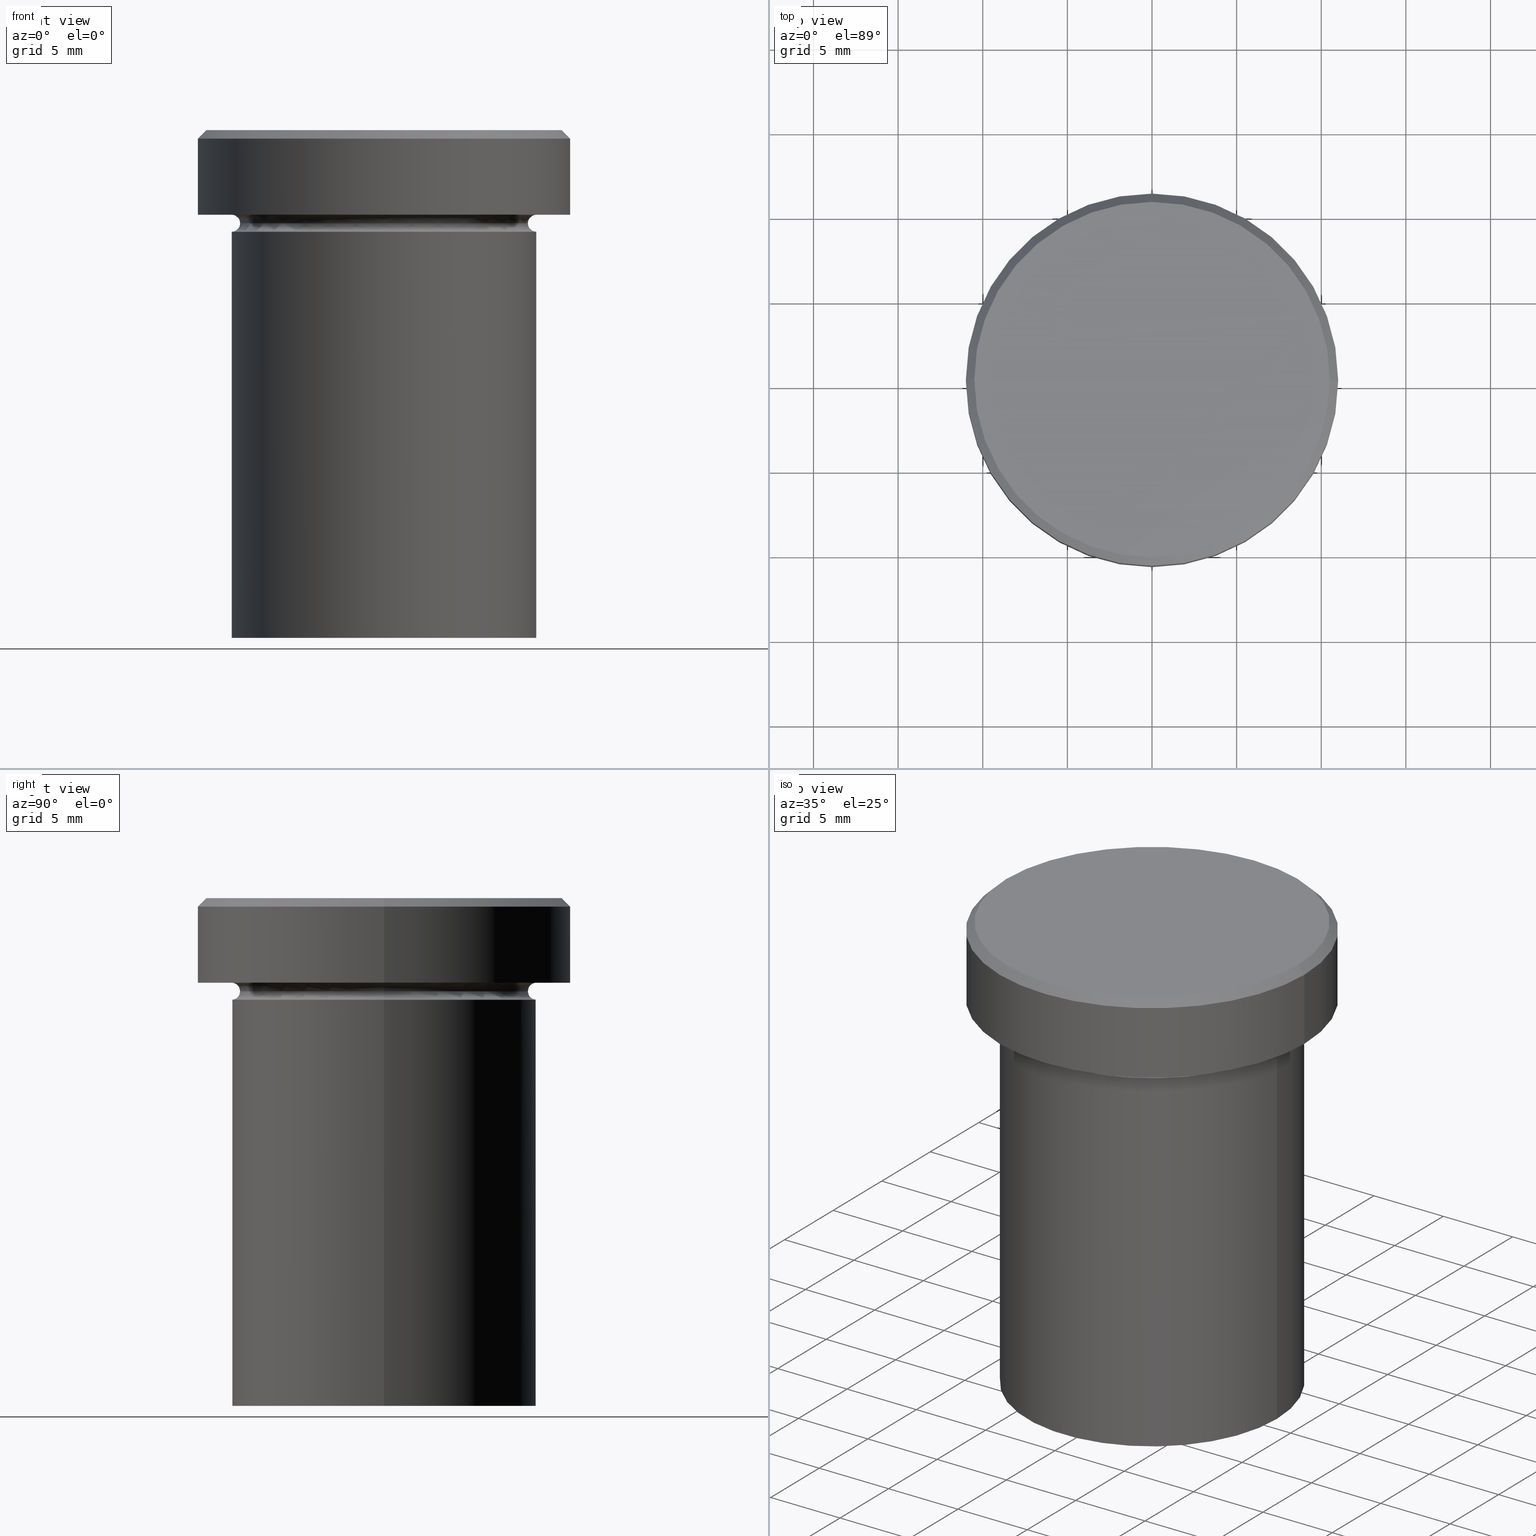
[diagram: canonical four-view strip — front | top / right | iso, engineering-drawing reading convention]
A machine part, canonical four-view strip (front | top / right | iso — engineering-drawing reading convention). The complete STEP part file that produces these views, byte-faithful:
ISO-10303-21;
HEADER;
FILE_DESCRIPTION (( 'STEP AP203' ),
    '1' );
FILE_NAME ('9d83.STEP',
    '2024-01-02T21:50:47',
    ( '' ),
    ( '' ),
    'SwSTEP 2.0',
    'SolidWorks 2019',
    '' );
FILE_SCHEMA (( 'CONFIG_CONTROL_DESIGN' ));
ENDSEC;

DATA;
#1 = AXIS2_PLACEMENT_3D ( 'NONE', #74, #387, #322 ) ;
#2 = LOCAL_TIME ( 22, 50, 47.00000000000000000, #148 ) ;
#3 = CARTESIAN_POINT ( 'NONE',  ( 10.49999999999999467, 1.285879139104720239E-15, 0.000000000000000000 ) ) ;
#4 = EDGE_CURVE ( 'NONE', #88, #63, #204, .T. ) ;
#5 = FACE_OUTER_BOUND ( 'NONE', #58, .T. ) ;
#6 = MECHANICAL_CONTEXT ( 'NONE', #288, 'mechanical' ) ;
#7 = CARTESIAN_POINT ( 'NONE',  ( 0.000000000000000000, 0.000000000000000000, -5.500000000000000000 ) ) ;
#8 = FACE_OUTER_BOUND ( 'NONE', #177, .T. ) ;
#9 = CIRCLE ( 'NONE', #242, 9.000000000000000000 ) ;
#10 = CC_DESIGN_APPROVAL ( #283, ( #312 ) ) ;
#11 = ADVANCED_BREP_SHAPE_REPRESENTATION ( '9d83', ( #81, #179 ), #135 ) ;
#12 = ADVANCED_FACE ( 'NONE', ( #185 ), #362, .T. ) ;
#13 = ORIENTED_EDGE ( 'NONE', *, *, #42, .F. ) ;
#14 = ORIENTED_EDGE ( 'NONE', *, *, #402, .T. ) ;
#15 = CARTESIAN_POINT ( 'NONE',  ( 9.000000000000000000, 1.102182119232617714E-15, -5.500000000000000000 ) ) ;
#16 = CONICAL_SURFACE ( 'NONE', #108, 10.49999999999999467, 0.7853981633974412846 ) ;
#17 = CALENDAR_DATE ( 2024, 2, 1 ) ;
#18 = DIRECTION ( 'NONE',  ( -0.000000000000000000, -0.000000000000000000, 1.000000000000000000 ) ) ;
#19 = EDGE_CURVE ( 'NONE', #405, #220, #21, .T. ) ;
#20 = DIRECTION ( 'NONE',  ( 1.000000000000000000, 0.000000000000000000, 0.000000000000000000 ) ) ;
#21 = CIRCLE ( 'NONE', #216, 8.499999999999998224 ) ;
#22 = DIRECTION ( 'NONE',  ( 1.224646799147353207E-16, 1.000000000000000000, 0.000000000000000000 ) ) ;
#23 = PERSON ( 'NEUR�EN�', 'NEUR�EN�', 'NEUR�EN�', ('NEUR�EN�'), ('NEUR�EN�'), ('NEUR�EN�') ) ;
#24 = ORIENTED_EDGE ( 'NONE', *, *, #82, .T. ) ;
#25 = FACE_OUTER_BOUND ( 'NONE', #367, .T. ) ;
#26 = CARTESIAN_POINT ( 'NONE',  ( 0.000000000000000000, 0.000000000000000000, -30.00000000000000000 ) ) ;
#27 = ADVANCED_FACE ( 'NONE', ( #354 ), #195, .T. ) ;
#28 = EDGE_LOOP ( 'NONE', ( #275, #309, #133, #155 ) ) ;
#29 = ORIENTED_EDGE ( 'NONE', *, *, #94, .F. ) ;
#30 = ORIENTED_EDGE ( 'NONE', *, *, #110, .T. ) ;
#31 = AXIS2_PLACEMENT_3D ( 'NONE', #359, #77, #328 ) ;
#32 = ORIENTED_EDGE ( 'NONE', *, *, #297, .F. ) ;
#33 = VECTOR ( 'NONE', #239, 1000.000000000000000 ) ;
#34 = EDGE_CURVE ( 'NONE', #310, #250, #213, .T. ) ;
#35 = DATE_AND_TIME ( #232, #389 ) ;
#36 = DIRECTION ( 'NONE',  ( -0.000000000000000000, -0.000000000000000000, 1.000000000000000000 ) ) ;
#37 = CYLINDRICAL_SURFACE ( 'NONE', #89, 11.00000000000000178 ) ;
#38 = DIRECTION ( 'NONE',  ( -0.000000000000000000, -0.000000000000000000, 1.000000000000000000 ) ) ;
#39 = ORIENTED_EDGE ( 'NONE', *, *, #291, .T. ) ;
#40 = ORIENTED_EDGE ( 'NONE', *, *, #114, .T. ) ;
#41 = AXIS2_PLACEMENT_3D ( 'NONE', #287, #258, #262 ) ;
#42 = EDGE_CURVE ( 'NONE', #405, #390, #106, .T. ) ;
#43 = CARTESIAN_POINT ( 'NONE',  ( 0.000000000000000000, 0.000000000000000000, 0.000000000000000000 ) ) ;
#44 = PLANE ( 'NONE',  #388 ) ;
#45 = DIRECTION ( 'NONE',  ( -0.000000000000000000, -0.000000000000000000, 1.000000000000000000 ) ) ;
#46 = CC_DESIGN_DATE_AND_TIME_ASSIGNMENT ( #117, #360, ( #122 ) ) ;
#47 = CARTESIAN_POINT ( 'NONE',  ( 9.000000000000000000, 0.000000000000000000, -6.000000000000000000 ) ) ;
#48 = APPROVAL ( #329, 'NEUR�EN�' ) ;
#49 = CIRCLE ( 'NONE', #107, 9.000000000000000000 ) ;
#50 = VECTOR ( 'NONE', #330, 999.9999999999998863 ) ;
#51 = CARTESIAN_POINT ( 'NONE',  ( 0.000000000000000000, 0.000000000000000000, 0.000000000000000000 ) ) ;
#52 = APPROVAL_ROLE ( '' ) ;
#53 = PERSON_AND_ORGANIZATION ( #23, #379 ) ;
#54 = CARTESIAN_POINT ( 'NONE',  ( 0.000000000000000000, 0.000000000000000000, -5.500000000000000000 ) ) ;
#55 = ADVANCED_FACE ( 'NONE', ( #75 ), #124, .F. ) ;
#56 = PRODUCT_DEFINITION_FORMATION_WITH_SPECIFIED_SOURCE ( 'LIBOVOLN�', '', #168, .NOT_KNOWN. ) ;
#57 = ORIENTED_EDGE ( 'NONE', *, *, #376, .F. ) ;
#58 = EDGE_LOOP ( 'NONE', ( #126, #215, #200, #338 ) ) ;
#59 = EDGE_LOOP ( 'NONE', ( #40, #98, #120, #57 ) ) ;
#60 = CIRCLE ( 'NONE', #289, 9.000000000000000000 ) ;
#61 = AXIS2_PLACEMENT_3D ( 'NONE', #205, #299, #320 ) ;
#62 = ORIENTED_EDGE ( 'NONE', *, *, #110, .F. ) ;
#63 = VERTEX_POINT ( 'NONE', #104 ) ;
#64 = LINE ( 'NONE', #3, #78 ) ;
#65 = CALENDAR_DATE ( 2024, 2, 1 ) ;
#66 = CARTESIAN_POINT ( 'NONE',  ( 0.000000000000000000, 0.000000000000000000, 0.000000000000000000 ) ) ;
#67 = DIRECTION ( 'NONE',  ( 0.000000000000000000, 0.000000000000000000, -1.000000000000000000 ) ) ;
#68 = APPROVAL_ROLE ( '' ) ;
#69 = EDGE_CURVE ( 'NONE', #159, #156, #226, .T. ) ;
#70 = APPROVAL_ROLE ( '' ) ;
#71 = CIRCLE ( 'NONE', #172, 11.00000000000000000 ) ;
#72 = DIRECTION ( 'NONE',  ( -1.000000000000000000, 0.000000000000000000, -0.000000000000000000 ) ) ;
#73 = SECURITY_CLASSIFICATION_LEVEL ( 'unclassified' ) ;
#74 = CARTESIAN_POINT ( 'NONE',  ( -9.000000000000000000, 0.000000000000000000, -5.500000000000000000 ) ) ;
#75 = FACE_OUTER_BOUND ( 'NONE', #188, .T. ) ;
#76 = VECTOR ( 'NONE', #102, 1000.000000000000000 ) ;
#77 = DIRECTION ( 'NONE',  ( 0.000000000000000000, 0.000000000000000000, -1.000000000000000000 ) ) ;
#78 = VECTOR ( 'NONE', #103, 999.9999999999998863 ) ;
#79 = APPROVAL_PERSON_ORGANIZATION ( #80, #48, #70 ) ;
#80 = PERSON_AND_ORGANIZATION ( #23, #379 ) ;
#81 = MANIFOLD_SOLID_BREP ( 'Zkosen�1', #393 ) ;
#82 = EDGE_CURVE ( 'NONE', #156, #159, #341, .T. ) ;
#83 = DIRECTION ( 'NONE',  ( -1.000000000000000000, 0.000000000000000000, 0.000000000000000000 ) ) ;
#84 = DIRECTION ( 'NONE',  ( 1.000000000000000000, 0.000000000000000000, 0.000000000000000000 ) ) ;
#85 = DIRECTION ( 'NONE',  ( -1.000000000000000000, 0.000000000000000000, 0.000000000000000000 ) ) ;
#86 = PERSON_AND_ORGANIZATION ( #23, #379 ) ;
#87 = CARTESIAN_POINT ( 'NONE',  ( 0.000000000000000000, 0.000000000000000000, -5.000000000000000000 ) ) ;
#88 = VERTEX_POINT ( 'NONE', #383 ) ;
#89 = AXIS2_PLACEMENT_3D ( 'NONE', #66, #227, #352 ) ;
#90 = DIRECTION ( 'NONE',  ( 1.000000000000000000, 0.000000000000000000, 0.000000000000000000 ) ) ;
#91 = EDGE_LOOP ( 'NONE', ( #404, #163 ) ) ;
#92 = ORIENTED_EDGE ( 'NONE', *, *, #251, .F. ) ;
#93 = ORIENTED_EDGE ( 'NONE', *, *, #192, .F. ) ;
#94 = EDGE_CURVE ( 'NONE', #88, #260, #71, .T. ) ;
#95 = ORIENTED_EDGE ( 'NONE', *, *, #272, .T. ) ;
#96 = DIRECTION ( 'NONE',  ( 1.000000000000000000, 0.000000000000000000, 0.000000000000000000 ) ) ;
#97 = APPLICATION_PROTOCOL_DEFINITION ( 'international standard', 'config_control_design', 1994, #288 ) ;
#98 = ORIENTED_EDGE ( 'NONE', *, *, #192, .T. ) ;
#99 = AXIS2_PLACEMENT_3D ( 'NONE', #147, #394, #183 ) ;
#100 = ORIENTED_EDGE ( 'NONE', *, *, #69, .F. ) ;
#101 = CC_DESIGN_PERSON_AND_ORGANIZATION_ASSIGNMENT ( #396, #303, ( #312 ) ) ;
#102 = DIRECTION ( 'NONE',  ( -0.000000000000000000, -0.000000000000000000, 1.000000000000000000 ) ) ;
#103 = DIRECTION ( 'NONE',  ( 0.7071067811865425767, 8.659560562354873694E-17, -0.7071067811865525687 ) ) ;
#104 = CARTESIAN_POINT ( 'NONE',  ( -11.00000000000000178, 1.347111479062088602E-15, -0.5000000000000125455 ) ) ;
#105 = APPROVAL_STATUS ( 'not_yet_approved' ) ;
#106 = CIRCLE ( 'NONE', #233, 0.5000000000000004441 ) ;
#107 = AXIS2_PLACEMENT_3D ( 'NONE', #87, #118, #154 ) ;
#108 = AXIS2_PLACEMENT_3D ( 'NONE', #149, #121, #85 ) ;
#109 = PRODUCT_DEFINITION_SHAPE ( 'NONE', 'NONE',  #122 ) ;
#110 = EDGE_CURVE ( 'NONE', #220, #319, #218, .T. ) ;
#111 = FACE_OUTER_BOUND ( 'NONE', #290, .T. ) ;
#112 = COORDINATED_UNIVERSAL_TIME_OFFSET ( 1, 0, .AHEAD. ) ;
#113 = VERTEX_POINT ( 'NONE', #371 ) ;
#114 = EDGE_CURVE ( 'NONE', #250, #310, #284, .T. ) ;
#115 = DIRECTION ( 'NONE',  ( -0.000000000000000000, -0.000000000000000000, 1.000000000000000000 ) ) ;
#116 = FACE_OUTER_BOUND ( 'NONE', #91, .T. ) ;
#117 = DATE_AND_TIME ( #268, #2 ) ;
#118 = DIRECTION ( 'NONE',  ( -0.000000000000000000, -0.000000000000000000, 1.000000000000000000 ) ) ;
#119 = CC_DESIGN_APPROVAL ( #48, ( #56 ) ) ;
#120 = ORIENTED_EDGE ( 'NONE', *, *, #291, .F. ) ;
#121 = DIRECTION ( 'NONE',  ( 0.000000000000000000, 0.000000000000000000, -1.000000000000000000 ) ) ;
#122 = PRODUCT_DEFINITION ( 'NEZN�M�', '', #56, #344 ) ;
#123 = CARTESIAN_POINT ( 'NONE',  ( -9.000000000000000000, 0.000000000000000000, -4.999999999999999112 ) ) ;
#124 = TOROIDAL_SURFACE ( 'NONE', #397, 9.000000000000000000, 0.5000000000000000000 ) ;
#125 = CIRCLE ( 'NONE', #61, 9.000000000000000000 ) ;
#126 = ORIENTED_EDGE ( 'NONE', *, *, #4, .F. ) ;
#127 = CC_DESIGN_PERSON_AND_ORGANIZATION_ASSIGNMENT ( #199, #263, ( #168 ) ) ;
#128 = ORIENTED_EDGE ( 'NONE', *, *, #140, .F. ) ;
#129 = DIRECTION ( 'NONE',  ( 0.000000000000000000, 0.000000000000000000, -1.000000000000000000 ) ) ;
#130 = ORIENTED_EDGE ( 'NONE', *, *, #34, .T. ) ;
#131 = ORIENTED_EDGE ( 'NONE', *, *, #409, .F. ) ;
#132 = EDGE_CURVE ( 'NONE', #156, #294, #64, .T. ) ;
#133 = ORIENTED_EDGE ( 'NONE', *, *, #240, .T. ) ;
#134 = AXIS2_PLACEMENT_3D ( 'NONE', #276, #340, #90 ) ;
#135 =( GEOMETRIC_REPRESENTATION_CONTEXT ( 3 ) GLOBAL_UNCERTAINTY_ASSIGNED_CONTEXT ( ( #384 ) ) GLOBAL_UNIT_ASSIGNED_CONTEXT ( ( #391, #231, #234 ) ) REPRESENTATION_CONTEXT ( 'NONE', 'WORKASPACE' ) );
#136 = CARTESIAN_POINT ( 'NONE',  ( 0.000000000000000000, 0.000000000000000000, 0.000000000000000000 ) ) ;
#137 = ADVANCED_FACE ( 'NONE', ( #257 ), #184, .F. ) ;
#138 = CARTESIAN_POINT ( 'NONE',  ( 9.000000000000000000, 0.000000000000000000, -5.500000000000000000 ) ) ;
#139 = PERSON_AND_ORGANIZATION ( #23, #379 ) ;
#140 = EDGE_CURVE ( 'NONE', #260, #88, #178, .T. ) ;
#141 = DIRECTION ( 'NONE',  ( -1.000000000000000000, -1.224646799147353454E-16, 0.000000000000000000 ) ) ;
#142 = PERSON_AND_ORGANIZATION ( #23, #379 ) ;
#143 = DIRECTION ( 'NONE',  ( 0.000000000000000000, -1.000000000000000000, 0.000000000000000000 ) ) ;
#144 = FACE_OUTER_BOUND ( 'NONE', #314, .T. ) ;
#145 = CARTESIAN_POINT ( 'NONE',  ( 0.000000000000000000, 0.000000000000000000, -5.500000000000000000 ) ) ;
#146 = APPROVAL_DATE_TIME ( #325, #346 ) ;
#147 = CARTESIAN_POINT ( 'NONE',  ( 0.000000000000000000, 0.000000000000000000, -0.5000000000000125455 ) ) ;
#148 = COORDINATED_UNIVERSAL_TIME_OFFSET ( 1, 0, .AHEAD. ) ;
#149 = CARTESIAN_POINT ( 'NONE',  ( 0.000000000000000000, 0.000000000000000000, 0.000000000000000000 ) ) ;
#150 = FACE_OUTER_BOUND ( 'NONE', #373, .T. ) ;
#151 = CARTESIAN_POINT ( 'NONE',  ( 0.000000000000000000, 0.000000000000000000, 0.000000000000000000 ) ) ;
#152 = ADVANCED_FACE ( 'NONE', ( #5 ), #292, .T. ) ;
#153 = AXIS2_PLACEMENT_3D ( 'NONE', #136, #236, #378 ) ;
#154 = DIRECTION ( 'NONE',  ( -1.000000000000000000, 0.000000000000000000, 0.000000000000000000 ) ) ;
#155 = ORIENTED_EDGE ( 'NONE', *, *, #364, .F. ) ;
#156 = VERTEX_POINT ( 'NONE', #353 ) ;
#157 = AXIS2_PLACEMENT_3D ( 'NONE', #229, #45, #173 ) ;
#158 = CIRCLE ( 'NONE', #380, 8.499999999999998224 ) ;
#159 = VERTEX_POINT ( 'NONE', #198 ) ;
#160 = AXIS2_PLACEMENT_3D ( 'NONE', #138, #143, #385 ) ;
#161 = ORIENTED_EDGE ( 'NONE', *, *, #339, .F. ) ;
#162 = ORIENTED_EDGE ( 'NONE', *, *, #297, .T. ) ;
#163 = ORIENTED_EDGE ( 'NONE', *, *, #34, .F. ) ;
#164 = LOCAL_TIME ( 22, 50, 47.00000000000000000, #248 ) ;
#165 = FACE_OUTER_BOUND ( 'NONE', #59, .T. ) ;
#166 = ORIENTED_EDGE ( 'NONE', *, *, #132, .T. ) ;
#167 = ADVANCED_FACE ( 'NONE', ( #228, #111 ), #44, .T. ) ;
#168 = PRODUCT ( '9d83', '9d83', '', ( #6 ) ) ;
#169 = VERTEX_POINT ( 'NONE', #47 ) ;
#170 = EDGE_LOOP ( 'NONE', ( #295, #162 ) ) ;
#171 = DATE_AND_TIME ( #65, #317 ) ;
#172 = AXIS2_PLACEMENT_3D ( 'NONE', #176, #203, #293 ) ;
#173 = DIRECTION ( 'NONE',  ( 1.000000000000000000, 0.000000000000000000, 0.000000000000000000 ) ) ;
#174 = CC_DESIGN_PERSON_AND_ORGANIZATION_ASSIGNMENT ( #53, #395, ( #56 ) ) ;
#175 = LINE ( 'NONE', #208, #311 ) ;
#176 = CARTESIAN_POINT ( 'NONE',  ( 0.000000000000000000, 0.000000000000000000, -5.000000000000000000 ) ) ;
#177 = EDGE_LOOP ( 'NONE', ( #223, #370, #350, #62 ) ) ;
#178 = CIRCLE ( 'NONE', #334, 11.00000000000000000 ) ;
#179 = AXIS2_PLACEMENT_3D ( 'NONE', #286, #265, #347 ) ;
#180 = DIRECTION ( 'NONE',  ( 0.000000000000000000, 0.000000000000000000, -1.000000000000000000 ) ) ;
#181 = COORDINATED_UNIVERSAL_TIME_OFFSET ( 1, 0, .AHEAD. ) ;
#182 = DIRECTION ( 'NONE',  ( 0.000000000000000000, 0.000000000000000000, -1.000000000000000000 ) ) ;
#183 = DIRECTION ( 'NONE',  ( 1.000000000000000000, 0.000000000000000000, 0.000000000000000000 ) ) ;
#184 = TOROIDAL_SURFACE ( 'NONE', #278, 9.000000000000000000, 0.5000000000000000000 ) ;
#185 = FACE_OUTER_BOUND ( 'NONE', #406, .T. ) ;
#186 = CARTESIAN_POINT ( 'NONE',  ( 9.000000000000000000, 0.000000000000000000, 0.000000000000000000 ) ) ;
#187 = DIRECTION ( 'NONE',  ( -1.000000000000000000, 1.224646799147353454E-16, 0.000000000000000000 ) ) ;
#188 = EDGE_LOOP ( 'NONE', ( #161, #95, #349, #222 ) ) ;
#189 = DATE_TIME_ROLE ( 'classification_date' ) ;
#190 = AXIS2_PLACEMENT_3D ( 'NONE', #302, #22, #187 ) ;
#191 = ORIENTED_EDGE ( 'NONE', *, *, #376, .T. ) ;
#192 = EDGE_CURVE ( 'NONE', #310, #113, #175, .T. ) ;
#193 = EDGE_LOOP ( 'NONE', ( #407, #100, #327, #92 ) ) ;
#194 = ORIENTED_EDGE ( 'NONE', *, *, #19, .T. ) ;
#195 = CONICAL_SURFACE ( 'NONE', #305, 10.49999999999999467, 0.7853981633974412846 ) ;
#196 = DIRECTION ( 'NONE',  ( 1.000000000000000000, 0.000000000000000000, 0.000000000000000000 ) ) ;
#197 = ADVANCED_FACE ( 'NONE', ( #150 ), #212, .T. ) ;
#198 = CARTESIAN_POINT ( 'NONE',  ( -10.49999999999999467, 0.000000000000000000, 0.000000000000000000 ) ) ;
#199 = PERSON_AND_ORGANIZATION ( #23, #379 ) ;
#200 = ORIENTED_EDGE ( 'NONE', *, *, #364, .T. ) ;
#201 = ADVANCED_FACE ( 'NONE', ( #144 ), #374, .F. ) ;
#202 = TOROIDAL_SURFACE ( 'NONE', #255, 9.000000000000000000, 0.5000000000000000000 ) ;
#203 = DIRECTION ( 'NONE',  ( -0.000000000000000000, -0.000000000000000000, 1.000000000000000000 ) ) ;
#204 = LINE ( 'NONE', #323, #76 ) ;
#205 = CARTESIAN_POINT ( 'NONE',  ( 0.000000000000000000, 0.000000000000000000, -6.000000000000000000 ) ) ;
#206 = CARTESIAN_POINT ( 'NONE',  ( 0.000000000000000000, 0.000000000000000000, -0.5000000000000125455 ) ) ;
#207 = CARTESIAN_POINT ( 'NONE',  ( 9.000000000000000000, 1.102182119232617714E-15, -4.999999999999999112 ) ) ;
#208 = CARTESIAN_POINT ( 'NONE',  ( -9.000000000000000000, 1.102182119232617714E-15, 0.000000000000000000 ) ) ;
#209 = AXIS2_PLACEMENT_3D ( 'NONE', #206, #180, #273 ) ;
#210 = DIRECTION ( 'NONE',  ( 0.000000000000000000, 0.000000000000000000, -1.000000000000000000 ) ) ;
#211 = CARTESIAN_POINT ( 'NONE',  ( -10.49999999999999467, 0.000000000000000000, 0.000000000000000000 ) ) ;
#212 = PLANE ( 'NONE',  #326 ) ;
#213 = CIRCLE ( 'NONE', #298, 9.000000000000000000 ) ;
#214 = CIRCLE ( 'NONE', #99, 11.00000000000000178 ) ;
#215 = ORIENTED_EDGE ( 'NONE', *, *, #94, .T. ) ;
#216 = AXIS2_PLACEMENT_3D ( 'NONE', #145, #365, #271 ) ;
#217 = CARTESIAN_POINT ( 'NONE',  ( 11.00000000000000178, 0.000000000000000000, -0.5000000000000125455 ) ) ;
#218 = CIRCLE ( 'NONE', #1, 0.5000000000000004441 ) ;
#219 = EDGE_CURVE ( 'NONE', #319, #390, #49, .T. ) ;
#220 = VERTEX_POINT ( 'NONE', #356 ) ;
#221 = COORDINATED_UNIVERSAL_TIME_OFFSET ( 1, 0, .AHEAD. ) ;
#222 = ORIENTED_EDGE ( 'NONE', *, *, #402, .F. ) ;
#223 = ORIENTED_EDGE ( 'NONE', *, *, #339, .T. ) ;
#224 = CC_DESIGN_DATE_AND_TIME_ASSIGNMENT ( #35, #189, ( #312 ) ) ;
#225 = DIRECTION ( 'NONE',  ( -0.000000000000000000, -0.000000000000000000, 1.000000000000000000 ) ) ;
#226 = CIRCLE ( 'NONE', #41, 10.49999999999999467 ) ;
#227 = DIRECTION ( 'NONE',  ( -0.000000000000000000, -0.000000000000000000, 1.000000000000000000 ) ) ;
#228 = FACE_BOUND ( 'NONE', #170, .T. ) ;
#229 = CARTESIAN_POINT ( 'NONE',  ( 0.000000000000000000, 0.000000000000000000, 0.000000000000000000 ) ) ;
#230 = CARTESIAN_POINT ( 'NONE',  ( 8.499999999999998224, 0.000000000000000000, -5.500000000000000000 ) ) ;
#231 =( NAMED_UNIT ( * ) PLANE_ANGLE_UNIT ( ) SI_UNIT ( $, .RADIAN. ) );
#232 = CALENDAR_DATE ( 2024, 2, 1 ) ;
#233 = AXIS2_PLACEMENT_3D ( 'NONE', #15, #237, #141 ) ;
#234 =( NAMED_UNIT ( * ) SI_UNIT ( $, .STERADIAN. ) SOLID_ANGLE_UNIT ( ) );
#235 = CC_DESIGN_SECURITY_CLASSIFICATION ( #312, ( #56 ) ) ;
#236 = DIRECTION ( 'NONE',  ( -0.000000000000000000, -0.000000000000000000, 1.000000000000000000 ) ) ;
#237 = DIRECTION ( 'NONE',  ( -1.224646799147353207E-16, 1.000000000000000000, 0.000000000000000000 ) ) ;
#238 = DIRECTION ( 'NONE',  ( 1.000000000000000000, 0.000000000000000000, 0.000000000000000000 ) ) ;
#239 = DIRECTION ( 'NONE',  ( -0.000000000000000000, -0.000000000000000000, 1.000000000000000000 ) ) ;
#240 = EDGE_CURVE ( 'NONE', #63, #294, #377, .T. ) ;
#241 = PLANE ( 'NONE',  #31 ) ;
#242 = AXIS2_PLACEMENT_3D ( 'NONE', #337, #282, #96 ) ;
#243 = LOCAL_TIME ( 22, 50, 47.00000000000000000, #181 ) ;
#244 = CARTESIAN_POINT ( 'NONE',  ( 11.00000000000000000, 0.000000000000000000, -5.000000000000000000 ) ) ;
#245 = APPLICATION_CONTEXT ( 'configuration controlled 3d designs of mechanical parts and assemblies' ) ;
#246 = ORIENTED_EDGE ( 'NONE', *, *, #69, .T. ) ;
#247 = DIRECTION ( 'NONE',  ( -0.000000000000000000, -0.000000000000000000, 1.000000000000000000 ) ) ;
#248 = COORDINATED_UNIVERSAL_TIME_OFFSET ( 1, 0, .AHEAD. ) ;
#249 = CC_DESIGN_PERSON_AND_ORGANIZATION_ASSIGNMENT ( #139, #296, ( #56 ) ) ;
#250 = VERTEX_POINT ( 'NONE', #300 ) ;
#251 = EDGE_CURVE ( 'NONE', #294, #63, #214, .T. ) ;
#252 = APPROVAL_DATE_TIME ( #171, #283 ) ;
#253 = DIRECTION ( 'NONE',  ( -1.000000000000000000, 0.000000000000000000, 0.000000000000000000 ) ) ;
#254 = DIRECTION ( 'NONE',  ( -1.000000000000000000, 0.000000000000000000, 0.000000000000000000 ) ) ;
#255 = AXIS2_PLACEMENT_3D ( 'NONE', #363, #210, #269 ) ;
#256 = APPROVAL_PERSON_ORGANIZATION ( #142, #283, #68 ) ;
#257 = FACE_OUTER_BOUND ( 'NONE', #281, .T. ) ;
#258 = DIRECTION ( 'NONE',  ( -0.000000000000000000, -0.000000000000000000, 1.000000000000000000 ) ) ;
#259 = CIRCLE ( 'NONE', #190, 0.5000000000000004441 ) ;
#260 = VERTEX_POINT ( 'NONE', #244 ) ;
#261 = ADVANCED_FACE ( 'NONE', ( #116 ), #241, .T. ) ;
#262 = DIRECTION ( 'NONE',  ( 1.000000000000000000, 0.000000000000000000, 0.000000000000000000 ) ) ;
#263 = PERSON_AND_ORGANIZATION_ROLE ( 'design_owner' ) ;
#264 = CYLINDRICAL_SURFACE ( 'NONE', #398, 9.000000000000000000 ) ;
#265 = DIRECTION ( 'NONE',  ( 0.000000000000000000, 0.000000000000000000, 1.000000000000000000 ) ) ;
#266 = CARTESIAN_POINT ( 'NONE',  ( 0.000000000000000000, 0.000000000000000000, -5.500000000000000000 ) ) ;
#267 = CARTESIAN_POINT ( 'NONE',  ( 0.000000000000000000, 0.000000000000000000, 0.000000000000000000 ) ) ;
#268 = CALENDAR_DATE ( 2024, 2, 1 ) ;
#269 = DIRECTION ( 'NONE',  ( -1.000000000000000000, 0.000000000000000000, 0.000000000000000000 ) ) ;
#270 = APPROVAL_DATE_TIME ( #381, #48 ) ;
#271 = DIRECTION ( 'NONE',  ( 1.000000000000000000, 0.000000000000000000, 0.000000000000000000 ) ) ;
#272 = EDGE_CURVE ( 'NONE', #220, #113, #259, .T. ) ;
#273 = DIRECTION ( 'NONE',  ( 1.000000000000000000, 0.000000000000000000, 0.000000000000000000 ) ) ;
#274 = DIRECTION ( 'NONE',  ( 1.000000000000000000, 0.000000000000000000, 0.000000000000000000 ) ) ;
#275 = ORIENTED_EDGE ( 'NONE', *, *, #140, .T. ) ;
#276 = CARTESIAN_POINT ( 'NONE',  ( 0.000000000000000000, 0.000000000000000000, -30.00000000000000000 ) ) ;
#277 = ORIENTED_EDGE ( 'NONE', *, *, #272, .F. ) ;
#278 = AXIS2_PLACEMENT_3D ( 'NONE', #318, #129, #254 ) ;
#279 = APPROVAL_PERSON_ORGANIZATION ( #86, #346, #52 ) ;
#280 = ORIENTED_EDGE ( 'NONE', *, *, #382, .F. ) ;
#281 = EDGE_LOOP ( 'NONE', ( #13, #194, #30, #32 ) ) ;
#282 = DIRECTION ( 'NONE',  ( -0.000000000000000000, -0.000000000000000000, 1.000000000000000000 ) ) ;
#283 = APPROVAL ( #105, 'NEUR�EN�' ) ;
#284 = CIRCLE ( 'NONE', #134, 9.000000000000000000 ) ;
#285 = SHAPE_DEFINITION_REPRESENTATION ( #109, #11 ) ;
#286 = CARTESIAN_POINT ( 'NONE',  ( 0.000000000000000000, 0.000000000000000000, 0.000000000000000000 ) ) ;
#287 = CARTESIAN_POINT ( 'NONE',  ( 0.000000000000000000, 0.000000000000000000, 0.000000000000000000 ) ) ;
#288 = APPLICATION_CONTEXT ( 'configuration controlled 3d designs of mechanical parts and assemblies' ) ;
#289 = AXIS2_PLACEMENT_3D ( 'NONE', #313, #36, #253 ) ;
#290 = EDGE_LOOP ( 'NONE', ( #128, #29 ) ) ;
#291 = EDGE_CURVE ( 'NONE', #169, #113, #9, .T. ) ;
#292 = CYLINDRICAL_SURFACE ( 'NONE', #153, 11.00000000000000178 ) ;
#293 = DIRECTION ( 'NONE',  ( 1.000000000000000000, 0.000000000000000000, 0.000000000000000000 ) ) ;
#294 = VERTEX_POINT ( 'NONE', #217 ) ;
#295 = ORIENTED_EDGE ( 'NONE', *, *, #219, .T. ) ;
#296 = PERSON_AND_ORGANIZATION_ROLE ( 'creator' ) ;
#297 = EDGE_CURVE ( 'NONE', #390, #319, #60, .T. ) ;
#298 = AXIS2_PLACEMENT_3D ( 'NONE', #26, #366, #84 ) ;
#299 = DIRECTION ( 'NONE',  ( -0.000000000000000000, -0.000000000000000000, 1.000000000000000000 ) ) ;
#300 = CARTESIAN_POINT ( 'NONE',  ( 9.000000000000000000, 0.000000000000000000, -30.00000000000000000 ) ) ;
#301 = DIRECTION ( 'NONE',  ( -0.000000000000000000, -0.000000000000000000, 1.000000000000000000 ) ) ;
#302 = CARTESIAN_POINT ( 'NONE',  ( -9.000000000000000000, 1.102182119232617714E-15, -5.500000000000000000 ) ) ;
#303 = PERSON_AND_ORGANIZATION_ROLE ( 'classification_officer' ) ;
#304 = LINE ( 'NONE', #401, #375 ) ;
#305 = AXIS2_PLACEMENT_3D ( 'NONE', #267, #182, #83 ) ;
#306 = APPROVAL_STATUS ( 'not_yet_approved' ) ;
#307 = PERSON_AND_ORGANIZATION_ROLE ( 'creator' ) ;
#308 = ADVANCED_FACE ( 'NONE', ( #8 ), #202, .F. ) ;
#309 = ORIENTED_EDGE ( 'NONE', *, *, #4, .T. ) ;
#310 = VERTEX_POINT ( 'NONE', #358 ) ;
#311 = VECTOR ( 'NONE', #301, 1000.000000000000000 ) ;
#312 = SECURITY_CLASSIFICATION ( '', '', #73 ) ;
#313 = CARTESIAN_POINT ( 'NONE',  ( 0.000000000000000000, 0.000000000000000000, -5.000000000000000000 ) ) ;
#314 = EDGE_LOOP ( 'NONE', ( #277, #403, #14, #39 ) ) ;
#315 = CC_DESIGN_PERSON_AND_ORGANIZATION_ASSIGNMENT ( #368, #307, ( #122 ) ) ;
#316 = CARTESIAN_POINT ( 'NONE',  ( 0.000000000000000000, 0.000000000000000000, -5.000000000000000000 ) ) ;
#317 = LOCAL_TIME ( 22, 50, 47.00000000000000000, #221 ) ;
#318 = CARTESIAN_POINT ( 'NONE',  ( 0.000000000000000000, 0.000000000000000000, -5.500000000000000000 ) ) ;
#319 = VERTEX_POINT ( 'NONE', #123 ) ;
#320 = DIRECTION ( 'NONE',  ( 1.000000000000000000, 0.000000000000000000, 0.000000000000000000 ) ) ;
#321 = CC_DESIGN_APPROVAL ( #346, ( #122 ) ) ;
#322 = DIRECTION ( 'NONE',  ( 0.000000000000000000, 0.000000000000000000, -1.000000000000000000 ) ) ;
#323 = CARTESIAN_POINT ( 'NONE',  ( -11.00000000000000178, 1.347111479062088602E-15, 0.000000000000000000 ) ) ;
#324 = ADVANCED_FACE ( 'NONE', ( #408 ), #37, .T. ) ;
#325 = DATE_AND_TIME ( #355, #164 ) ;
#326 = AXIS2_PLACEMENT_3D ( 'NONE', #51, #399, #332 ) ;
#327 = ORIENTED_EDGE ( 'NONE', *, *, #382, .T. ) ;
#328 = DIRECTION ( 'NONE',  ( -1.000000000000000000, 0.000000000000000000, -0.000000000000000000 ) ) ;
#329 = APPROVAL_STATUS ( 'not_yet_approved' ) ;
#330 = DIRECTION ( 'NONE',  ( -0.7071067811865425767, 0.000000000000000000, -0.7071067811865525687 ) ) ;
#331 = ADVANCED_FACE ( 'NONE', ( #165 ), #264, .T. ) ;
#332 = DIRECTION ( 'NONE',  ( 1.000000000000000000, 0.000000000000000000, 0.000000000000000000 ) ) ;
#333 = LINE ( 'NONE', #186, #33 ) ;
#334 = AXIS2_PLACEMENT_3D ( 'NONE', #316, #38, #196 ) ;
#335 = ORIENTED_EDGE ( 'NONE', *, *, #240, .F. ) ;
#336 = PRODUCT_RELATED_PRODUCT_CATEGORY ( 'detail', '', ( #168 ) ) ;
#337 = CARTESIAN_POINT ( 'NONE',  ( 0.000000000000000000, 0.000000000000000000, -6.000000000000000000 ) ) ;
#338 = ORIENTED_EDGE ( 'NONE', *, *, #251, .T. ) ;
#339 = EDGE_CURVE ( 'NONE', #220, #405, #158, .T. ) ;
#340 = DIRECTION ( 'NONE',  ( -0.000000000000000000, -0.000000000000000000, 1.000000000000000000 ) ) ;
#341 = CIRCLE ( 'NONE', #157, 10.49999999999999467 ) ;
#342 = CIRCLE ( 'NONE', #160, 0.5000000000000004441 ) ;
#343 = DIRECTION ( 'NONE',  ( 1.000000000000000000, 0.000000000000000000, 0.000000000000000000 ) ) ;
#344 = DESIGN_CONTEXT ( 'detailed design', #245, 'design' ) ;
#345 = CARTESIAN_POINT ( 'NONE',  ( 0.000000000000000000, 11.00000000000000000, -5.000000000000000000 ) ) ;
#346 = APPROVAL ( #306, 'NEUR�EN�' ) ;
#347 = DIRECTION ( 'NONE',  ( 1.000000000000000000, 0.000000000000000000, 0.000000000000000000 ) ) ;
#348 = DIRECTION ( 'NONE',  ( -0.000000000000000000, -0.000000000000000000, 1.000000000000000000 ) ) ;
#349 = ORIENTED_EDGE ( 'NONE', *, *, #409, .T. ) ;
#350 = ORIENTED_EDGE ( 'NONE', *, *, #219, .F. ) ;
#351 = ADVANCED_FACE ( 'NONE', ( #25 ), #16, .T. ) ;
#352 = DIRECTION ( 'NONE',  ( 1.000000000000000000, 0.000000000000000000, 0.000000000000000000 ) ) ;
#353 = CARTESIAN_POINT ( 'NONE',  ( 10.49999999999999467, 1.316495309083404420E-15, 0.000000000000000000 ) ) ;
#354 = FACE_OUTER_BOUND ( 'NONE', #193, .T. ) ;
#355 = CALENDAR_DATE ( 2024, 2, 1 ) ;
#356 = CARTESIAN_POINT ( 'NONE',  ( -8.499999999999998224, 1.071565949253933927E-15, -5.500000000000000000 ) ) ;
#357 = LINE ( 'NONE', #211, #50 ) ;
#358 = CARTESIAN_POINT ( 'NONE',  ( -9.000000000000000000, 1.102182119232617714E-15, -30.00000000000000000 ) ) ;
#359 = CARTESIAN_POINT ( 'NONE',  ( 0.000000000000000000, 9.000000000000000000, -30.00000000000000000 ) ) ;
#360 = DATE_TIME_ROLE ( 'creation_date' ) ;
#361 = AXIS2_PLACEMENT_3D ( 'NONE', #266, #392, #238 ) ;
#362 = CYLINDRICAL_SURFACE ( 'NONE', #372, 9.000000000000000000 ) ;
#363 = CARTESIAN_POINT ( 'NONE',  ( 0.000000000000000000, 0.000000000000000000, -5.500000000000000000 ) ) ;
#364 = EDGE_CURVE ( 'NONE', #260, #294, #304, .T. ) ;
#365 = DIRECTION ( 'NONE',  ( -0.000000000000000000, -0.000000000000000000, 1.000000000000000000 ) ) ;
#366 = DIRECTION ( 'NONE',  ( -0.000000000000000000, -0.000000000000000000, 1.000000000000000000 ) ) ;
#367 = EDGE_LOOP ( 'NONE', ( #369, #166, #335, #280 ) ) ;
#368 = PERSON_AND_ORGANIZATION ( #23, #379 ) ;
#369 = ORIENTED_EDGE ( 'NONE', *, *, #82, .F. ) ;
#370 = ORIENTED_EDGE ( 'NONE', *, *, #42, .T. ) ;
#371 = CARTESIAN_POINT ( 'NONE',  ( -9.000000000000000000, 1.102182119232617714E-15, -6.000000000000000000 ) ) ;
#372 = AXIS2_PLACEMENT_3D ( 'NONE', #151, #18, #400 ) ;
#373 = EDGE_LOOP ( 'NONE', ( #246, #24 ) ) ;
#374 = TOROIDAL_SURFACE ( 'NONE', #361, 9.000000000000000000, 0.5000000000000000000 ) ;
#375 = VECTOR ( 'NONE', #247, 1000.000000000000000 ) ;
#376 = EDGE_CURVE ( 'NONE', #250, #169, #333, .T. ) ;
#377 = CIRCLE ( 'NONE', #209, 11.00000000000000178 ) ;
#378 = DIRECTION ( 'NONE',  ( 1.000000000000000000, 0.000000000000000000, 0.000000000000000000 ) ) ;
#379 = ORGANIZATION ( 'NEUR�EN�', 'NEUR�EN�', '' ) ;
#380 = AXIS2_PLACEMENT_3D ( 'NONE', #54, #115, #20 ) ;
#381 = DATE_AND_TIME ( #17, #243 ) ;
#382 = EDGE_CURVE ( 'NONE', #159, #63, #357, .T. ) ;
#383 = CARTESIAN_POINT ( 'NONE',  ( -11.00000000000000000, 1.347111479062088602E-15, -5.000000000000000000 ) ) ;
#384 = UNCERTAINTY_MEASURE_WITH_UNIT (LENGTH_MEASURE( 1.000000000000000082E-05 ), #391, 'distance_accuracy_value', 'NONE');
#385 = DIRECTION ( 'NONE',  ( 0.000000000000000000, 0.000000000000000000, -1.000000000000000000 ) ) ;
#386 = APPLICATION_PROTOCOL_DEFINITION ( 'international standard', 'config_control_design', 1994, #245 ) ;
#387 = DIRECTION ( 'NONE',  ( -0.000000000000000000, -1.000000000000000000, -0.000000000000000000 ) ) ;
#388 = AXIS2_PLACEMENT_3D ( 'NONE', #345, #67, #72 ) ;
#389 = LOCAL_TIME ( 22, 50, 47.00000000000000000, #112 ) ;
#390 = VERTEX_POINT ( 'NONE', #207 ) ;
#391 =( LENGTH_UNIT ( ) NAMED_UNIT ( * ) SI_UNIT ( .MILLI., .METRE. ) );
#392 = DIRECTION ( 'NONE',  ( -0.000000000000000000, -0.000000000000000000, 1.000000000000000000 ) ) ;
#393 = CLOSED_SHELL ( 'NONE', ( #351, #308, #55, #331, #324, #261, #197, #152, #167, #12, #201, #137, #27 ) ) ;
#394 = DIRECTION ( 'NONE',  ( 0.000000000000000000, 0.000000000000000000, -1.000000000000000000 ) ) ;
#395 = PERSON_AND_ORGANIZATION_ROLE ( 'design_supplier' ) ;
#396 = PERSON_AND_ORGANIZATION ( #23, #379 ) ;
#397 = AXIS2_PLACEMENT_3D ( 'NONE', #7, #225, #343 ) ;
#398 = AXIS2_PLACEMENT_3D ( 'NONE', #43, #348, #274 ) ;
#399 = DIRECTION ( 'NONE',  ( 0.000000000000000000, -0.000000000000000000, 1.000000000000000000 ) ) ;
#400 = DIRECTION ( 'NONE',  ( 1.000000000000000000, 0.000000000000000000, 0.000000000000000000 ) ) ;
#401 = CARTESIAN_POINT ( 'NONE',  ( 11.00000000000000178, 0.000000000000000000, 0.000000000000000000 ) ) ;
#402 = EDGE_CURVE ( 'NONE', #405, #169, #342, .T. ) ;
#403 = ORIENTED_EDGE ( 'NONE', *, *, #19, .F. ) ;
#404 = ORIENTED_EDGE ( 'NONE', *, *, #114, .F. ) ;
#405 = VERTEX_POINT ( 'NONE', #230 ) ;
#406 = EDGE_LOOP ( 'NONE', ( #93, #130, #191, #131 ) ) ;
#407 = ORIENTED_EDGE ( 'NONE', *, *, #132, .F. ) ;
#408 = FACE_OUTER_BOUND ( 'NONE', #28, .T. ) ;
#409 = EDGE_CURVE ( 'NONE', #113, #169, #125, .T. ) ;
ENDSEC;
END-ISO-10303-21;
